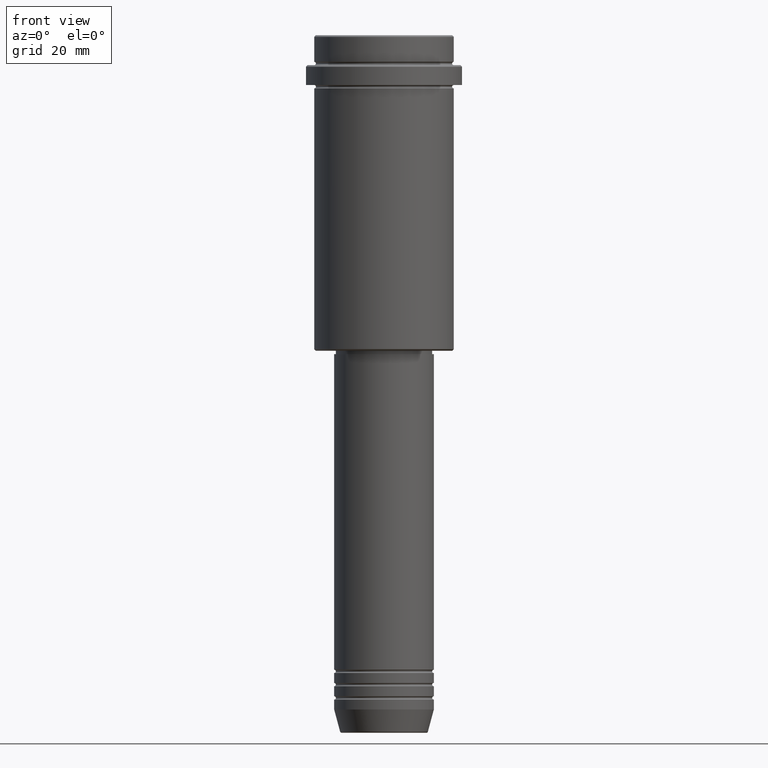
[diagram: clean part render]
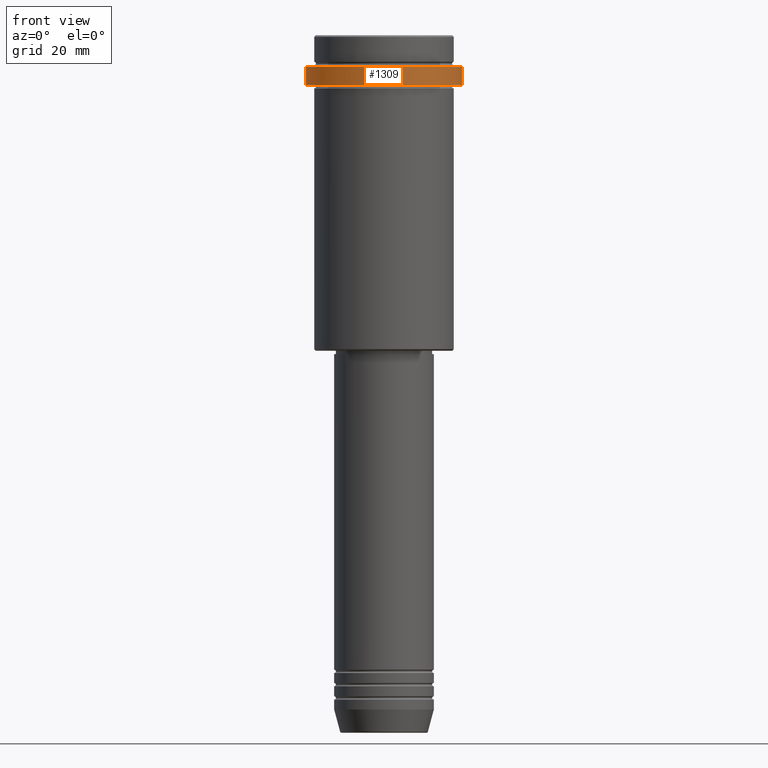
[diagram: same view with one face highlighted and labeled with its STEP entity id]
A machine part, front view. The second image highlights one B-rep face of the part: STEP entity #1309.
In plain terms, the highlighted cylindrical surface (partial cylindrical patch) has radius 23.5 mm, axis along (-0, -0, 1).
Its self-contained STEP definition (entity closure, byte-faithful):
#31 = ORIENTED_EDGE ( 'NONE', *, *, #968, .T. ) ;
#133 = CIRCLE ( 'NONE', #502, 23.50000000000000355 ) ;
#149 = VERTEX_POINT ( 'NONE', #767 ) ;
#227 = VECTOR ( 'NONE', #1021, 1000.000000000000000 ) ;
#247 = EDGE_CURVE ( 'NONE', #598, #1347, #1323, .T. ) ;
#249 = CARTESIAN_POINT ( 'NONE',  ( 23.50000000000000000, 0.000000000000000000, -9.499999999999971578 ) ) ;
#261 = DIRECTION ( 'NONE',  ( 1.000000000000000000, 0.000000000000000000, 0.000000000000000000 ) ) ;
#263 = CARTESIAN_POINT ( 'NONE',  ( 0.000000000000000000, 0.000000000000000000, -15.00000000000000000 ) ) ;
#297 = CYLINDRICAL_SURFACE ( 'NONE', #1252, 23.50000000000000000 ) ;
#312 = DIRECTION ( 'NONE',  ( 1.000000000000000000, 0.000000000000000000, 0.000000000000000000 ) ) ;
#382 = DIRECTION ( 'NONE',  ( -0.000000000000000000, -0.000000000000000000, 1.000000000000000000 ) ) ;
#403 = ORIENTED_EDGE ( 'NONE', *, *, #1006, .T. ) ;
#477 = LINE ( 'NONE', #1122, #227 ) ;
#502 = AXIS2_PLACEMENT_3D ( 'NONE', #263, #382, #1239 ) ;
#503 = CARTESIAN_POINT ( 'NONE',  ( -23.50000000000000000, 2.877919977996280320E-15, -9.499999999999971578 ) ) ;
#506 = DIRECTION ( 'NONE',  ( 0.000000000000000000, 0.000000000000000000, -1.000000000000000000 ) ) ;
#589 = EDGE_LOOP ( 'NONE', ( #1191, #31, #403, #755 ) ) ;
#598 = VERTEX_POINT ( 'NONE', #249 ) ;
#627 = CARTESIAN_POINT ( 'NONE',  ( 23.50000000000000355, 0.000000000000000000, -15.00000000000000000 ) ) ;
#725 = FACE_OUTER_BOUND ( 'NONE', #589, .T. ) ;
#739 = CARTESIAN_POINT ( 'NONE',  ( 0.000000000000000000, 0.000000000000000000, 0.000000000000000000 ) ) ;
#755 = ORIENTED_EDGE ( 'NONE', *, *, #247, .T. ) ;
#756 = VECTOR ( 'NONE', #879, 1000.000000000000000 ) ;
#759 = LINE ( 'NONE', #1412, #756 ) ;
#767 = CARTESIAN_POINT ( 'NONE',  ( -23.50000000000000711, 2.877919977996281109E-15, -15.00000000000000000 ) ) ;
#864 = EDGE_CURVE ( 'NONE', #149, #1347, #759, .T. ) ;
#867 = AXIS2_PLACEMENT_3D ( 'NONE', #936, #506, #261 ) ;
#879 = DIRECTION ( 'NONE',  ( -0.000000000000000000, -0.000000000000000000, 1.000000000000000000 ) ) ;
#936 = CARTESIAN_POINT ( 'NONE',  ( 0.000000000000000000, 0.000000000000000000, -9.499999999999971578 ) ) ;
#964 = DIRECTION ( 'NONE',  ( -0.000000000000000000, -0.000000000000000000, 1.000000000000000000 ) ) ;
#968 = EDGE_CURVE ( 'NONE', #149, #1405, #133, .T. ) ;
#1006 = EDGE_CURVE ( 'NONE', #1405, #598, #477, .T. ) ;
#1021 = DIRECTION ( 'NONE',  ( -0.000000000000000000, -0.000000000000000000, 1.000000000000000000 ) ) ;
#1122 = CARTESIAN_POINT ( 'NONE',  ( 23.50000000000000000, 0.000000000000000000, 0.000000000000000000 ) ) ;
#1191 = ORIENTED_EDGE ( 'NONE', *, *, #864, .F. ) ;
#1239 = DIRECTION ( 'NONE',  ( 1.000000000000000000, 0.000000000000000000, 0.000000000000000000 ) ) ;
#1252 = AXIS2_PLACEMENT_3D ( 'NONE', #739, #964, #312 ) ;
#1309 = ADVANCED_FACE ( 'NONE', ( #725 ), #297, .T. ) ;
#1323 = CIRCLE ( 'NONE', #867, 23.50000000000000000 ) ;
#1347 = VERTEX_POINT ( 'NONE', #503 ) ;
#1405 = VERTEX_POINT ( 'NONE', #627 ) ;
#1412 = CARTESIAN_POINT ( 'NONE',  ( -23.50000000000000000, 2.877919977996280320E-15, 0.000000000000000000 ) ) ;